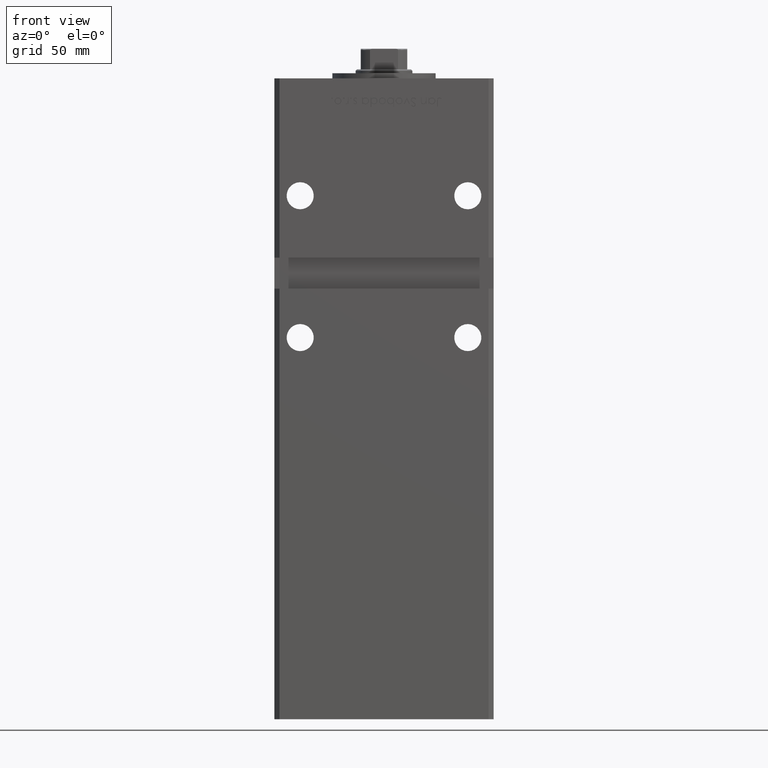
[diagram: clean part render]
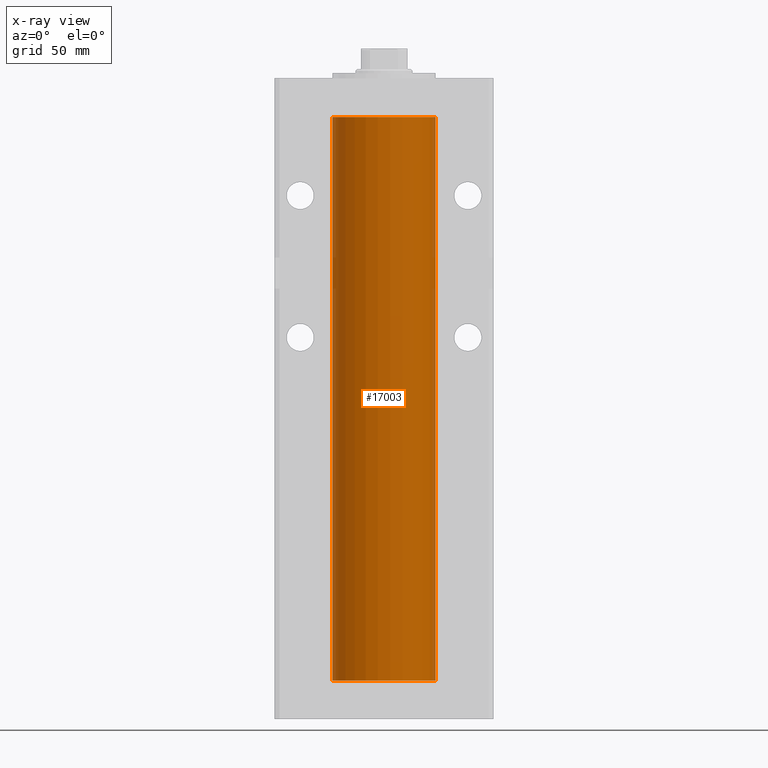
[diagram: x-ray — body ghosted, one internal face saturated and labeled with its STEP entity id]
A machine part, front view, then the same camera in x-ray: the body is ghosted and one INTERNAL B-rep face — a face not visible from any outside direction — is saturated and labeled: STEP entity #17003.
In plain terms, the highlighted cylindrical surface (partial cylindrical patch) has radius 20 mm, axis along (-0, -0, -1).
Its self-contained STEP definition (entity closure, byte-faithful):
#23 = CARTESIAN_POINT ( 'NONE',  ( 20.00000000000000000, 2.449293598294706513E-15, 0.000000000000000000 ) ) ;
#1966 = VECTOR ( 'NONE', #34945, 1000.000000000000000 ) ;
#2141 = CARTESIAN_POINT ( 'NONE',  ( -20.00000000000000000, 0.000000000000000000, 218.5000000000000000 ) ) ;
#2545 = CYLINDRICAL_SURFACE ( 'NONE', #21845, 20.00000000000000000 ) ;
#3338 = CARTESIAN_POINT ( 'NONE',  ( -20.00000000000000000, 0.000000000000000000, 218.5000000000000000 ) ) ;
#8789 = DIRECTION ( 'NONE',  ( 1.000000000000000000, 0.000000000000000000, 0.000000000000000000 ) ) ;
#9314 = VERTEX_POINT ( 'NONE', #3338 ) ;
#10272 = VERTEX_POINT ( 'NONE', #23 ) ;
#11952 = AXIS2_PLACEMENT_3D ( 'NONE', #47394, #43892, #35060 ) ;
#12452 = ORIENTED_EDGE ( 'NONE', *, *, #45829, .F. ) ;
#12664 = ORIENTED_EDGE ( 'NONE', *, *, #34017, .F. ) ;
#14525 = ORIENTED_EDGE ( 'NONE', *, *, #35474, .T. ) ;
#17003 = ADVANCED_FACE ( 'NONE', ( #52486 ), #2545, .F. ) ;
#17097 = CIRCLE ( 'NONE', #11952, 20.00000000000000000 ) ;
#18774 = CARTESIAN_POINT ( 'NONE',  ( 20.00000000000000000, 2.449293598294706513E-15, 218.5000000000000000 ) ) ;
#19768 = VERTEX_POINT ( 'NONE', #42929 ) ;
#21020 = EDGE_LOOP ( 'NONE', ( #31248, #14525, #12664, #12452 ) ) ;
#21845 = AXIS2_PLACEMENT_3D ( 'NONE', #24037, #22993, #31051 ) ;
#22074 = VERTEX_POINT ( 'NONE', #31564 ) ;
#22993 = DIRECTION ( 'NONE',  ( -0.000000000000000000, -0.000000000000000000, -1.000000000000000000 ) ) ;
#24037 = CARTESIAN_POINT ( 'NONE',  ( 0.000000000000000000, 0.000000000000000000, 218.5000000000000000 ) ) ;
#25192 = CARTESIAN_POINT ( 'NONE',  ( 0.000000000000000000, 0.000000000000000000, 218.5000000000000000 ) ) ;
#30651 = LINE ( 'NONE', #2141, #1966 ) ;
#31051 = DIRECTION ( 'NONE',  ( -1.000000000000000000, 0.000000000000000000, 0.000000000000000000 ) ) ;
#31248 = ORIENTED_EDGE ( 'NONE', *, *, #44201, .T. ) ;
#31564 = CARTESIAN_POINT ( 'NONE',  ( 20.00000000000000000, 2.449293598294706513E-15, 218.5000000000000000 ) ) ;
#34017 = EDGE_CURVE ( 'NONE', #19768, #10272, #17097, .T. ) ;
#34945 = DIRECTION ( 'NONE',  ( -0.000000000000000000, -0.000000000000000000, -1.000000000000000000 ) ) ;
#35060 = DIRECTION ( 'NONE',  ( 1.000000000000000000, 0.000000000000000000, 0.000000000000000000 ) ) ;
#35168 = DIRECTION ( 'NONE',  ( -0.000000000000000000, -0.000000000000000000, -1.000000000000000000 ) ) ;
#35474 = EDGE_CURVE ( 'NONE', #22074, #10272, #51792, .T. ) ;
#35892 = VECTOR ( 'NONE', #35168, 1000.000000000000000 ) ;
#42929 = CARTESIAN_POINT ( 'NONE',  ( -20.00000000000000000, 0.000000000000000000, 0.000000000000000000 ) ) ;
#43892 = DIRECTION ( 'NONE',  ( -0.000000000000000000, 0.000000000000000000, 1.000000000000000000 ) ) ;
#43979 = AXIS2_PLACEMENT_3D ( 'NONE', #25192, #45347, #8789 ) ;
#44201 = EDGE_CURVE ( 'NONE', #9314, #22074, #50832, .T. ) ;
#45347 = DIRECTION ( 'NONE',  ( -0.000000000000000000, 0.000000000000000000, 1.000000000000000000 ) ) ;
#45829 = EDGE_CURVE ( 'NONE', #9314, #19768, #30651, .T. ) ;
#47394 = CARTESIAN_POINT ( 'NONE',  ( 0.000000000000000000, 0.000000000000000000, 0.000000000000000000 ) ) ;
#50832 = CIRCLE ( 'NONE', #43979, 20.00000000000000000 ) ;
#51792 = LINE ( 'NONE', #18774, #35892 ) ;
#52486 = FACE_OUTER_BOUND ( 'NONE', #21020, .T. ) ;